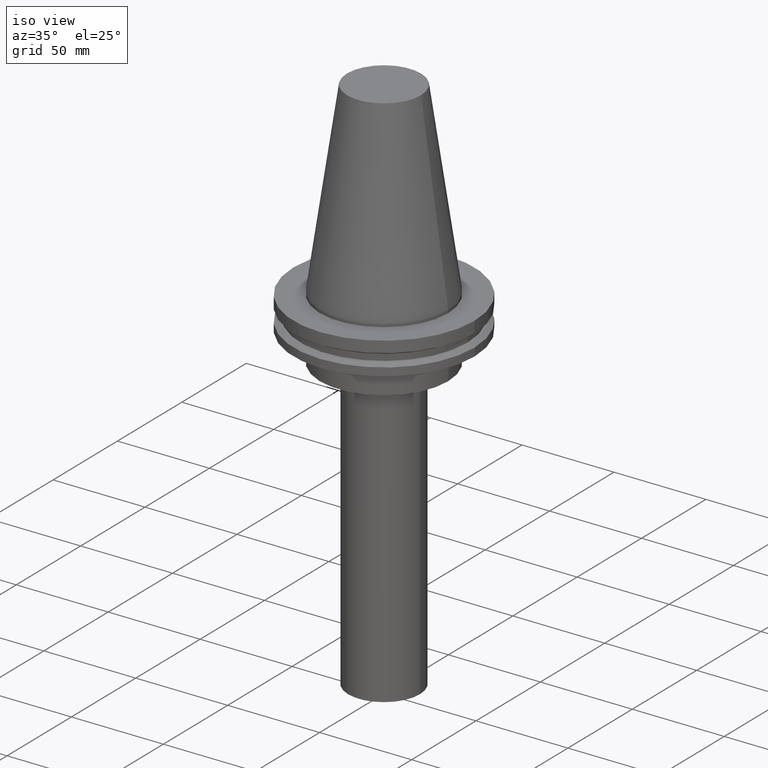
[diagram: clean part render]
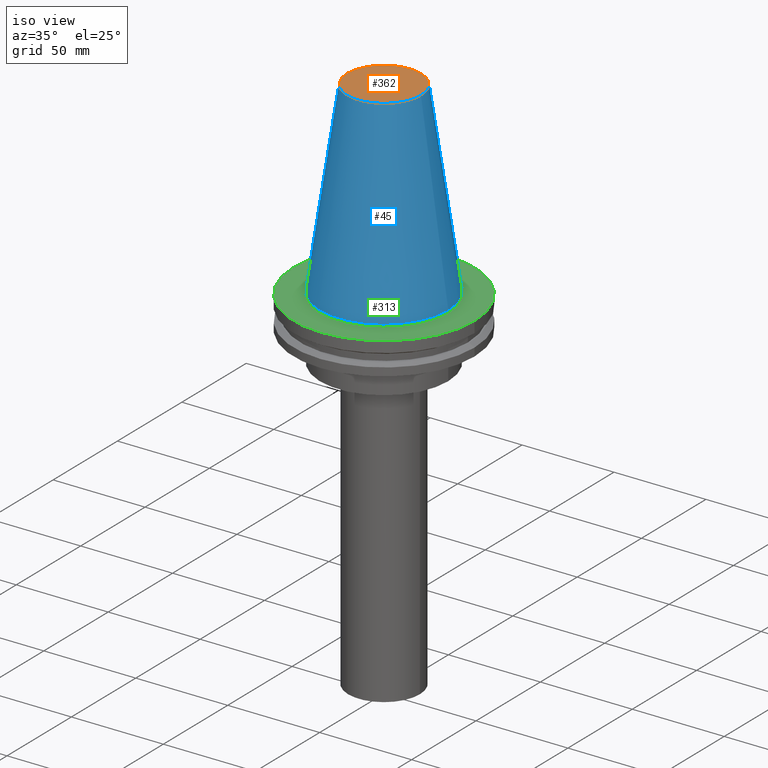
[diagram: same view with three faces highlighted in distinct colors, each labeled with its STEP entity id]
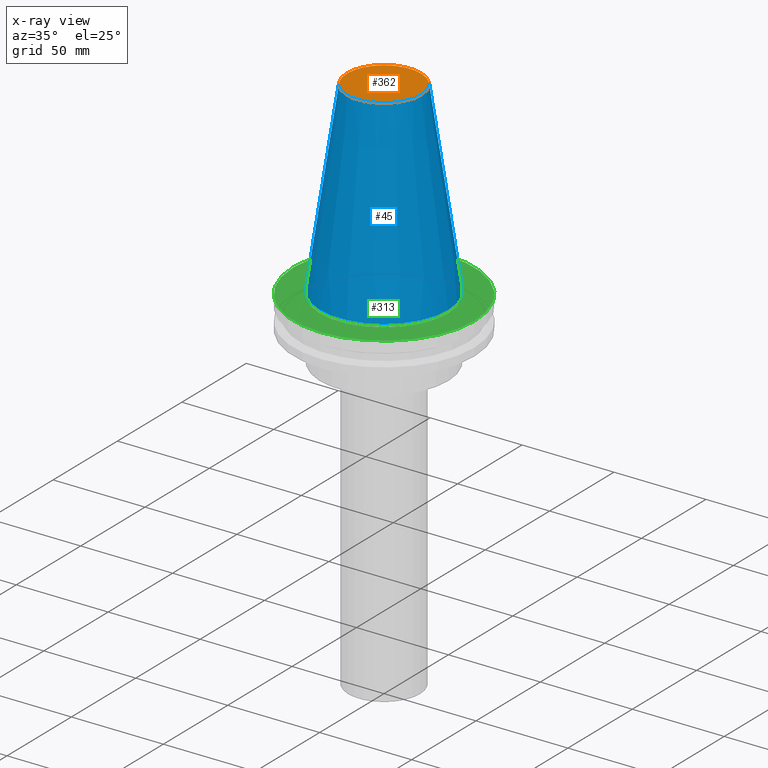
[diagram: x-ray of the same camera — body ghosted, the three highlighted faces saturated]
A machine part, iso view with three faces highlighted in distinct colors.
The next image is the same camera in x-ray (body ghosted, the three faces saturated) — at least one of them is partly hidden behind the body in this view.
Their STEP definitions:

[orange] entity #362 — the highlighted planar face has unit normal (0, 0, -1).
#17 = EDGE_CURVE ( 'NONE', #77, #77, #104, .T. ) ;
#25 = CARTESIAN_POINT ( 'NONE',  ( 20.10819343178871321, 0.000000000000000000, 101.5999999999999801 ) ) ;
#34 = AXIS2_PLACEMENT_3D ( 'NONE', #324, #132, #78 ) ;
#66 = DIRECTION ( 'NONE',  ( 1.000000000000000000, 0.000000000000000000, 0.000000000000000000 ) ) ;
#77 = VERTEX_POINT ( 'NONE', #25 ) ;
#78 = DIRECTION ( 'NONE',  ( -1.000000000000000000, 0.000000000000000000, -0.000000000000000000 ) ) ;
#79 = FACE_OUTER_BOUND ( 'NONE', #280, .T. ) ;
#92 = CARTESIAN_POINT ( 'NONE',  ( 0.000000000000000000, 0.000000000000000000, 101.5999999999999801 ) ) ;
#104 = CIRCLE ( 'NONE', #381, 20.10819343178871321 ) ;
#132 = DIRECTION ( 'NONE',  ( 0.000000000000000000, 0.000000000000000000, -1.000000000000000000 ) ) ;
#211 = DIRECTION ( 'NONE',  ( -0.000000000000000000, -0.000000000000000000, 1.000000000000000000 ) ) ;
#217 = ORIENTED_EDGE ( 'NONE', *, *, #17, .T. ) ;
#280 = EDGE_LOOP ( 'NONE', ( #217 ) ) ;
#324 = CARTESIAN_POINT ( 'NONE',  ( 0.000000000000000000, 20.10819343178871321, 101.5999999999999943 ) ) ;
#362 = ADVANCED_FACE ( 'NONE', ( #79 ), #363, .F. ) ;
#363 = PLANE ( 'NONE',  #34 ) ;
#381 = AXIS2_PLACEMENT_3D ( 'NONE', #92, #211, #66 ) ;

[blue] entity #45 — the highlighted conical surface has half-angle 8.297 deg.
#5 = VERTEX_POINT ( 'NONE', #37 ) ;
#12 = DIRECTION ( 'NONE',  ( 0.000000000000000000, 0.000000000000000000, -1.000000000000000000 ) ) ;
#17 = EDGE_CURVE ( 'NONE', #77, #77, #104, .T. ) ;
#22 = AXIS2_PLACEMENT_3D ( 'NONE', #44, #12, #96 ) ;
#25 = CARTESIAN_POINT ( 'NONE',  ( 20.10819343178871321, 0.000000000000000000, 101.5999999999999801 ) ) ;
#37 = CARTESIAN_POINT ( 'NONE',  ( 34.92499999999999005, 0.000000000000000000, 0.000000000000000000 ) ) ;
#44 = CARTESIAN_POINT ( 'NONE',  ( 0.000000000000000000, 0.000000000000000000, 0.000000000000000000 ) ) ;
#45 = ADVANCED_FACE ( 'NONE', ( #253, #122 ), #138, .T. ) ;
#63 = EDGE_LOOP ( 'NONE', ( #216 ) ) ;
#66 = DIRECTION ( 'NONE',  ( 1.000000000000000000, 0.000000000000000000, 0.000000000000000000 ) ) ;
#77 = VERTEX_POINT ( 'NONE', #25 ) ;
#92 = CARTESIAN_POINT ( 'NONE',  ( 0.000000000000000000, 0.000000000000000000, 101.5999999999999801 ) ) ;
#96 = DIRECTION ( 'NONE',  ( -1.000000000000000000, 0.000000000000000000, 0.000000000000000000 ) ) ;
#104 = CIRCLE ( 'NONE', #381, 20.10819343178871321 ) ;
#122 = FACE_OUTER_BOUND ( 'NONE', #307, .T. ) ;
#135 = DIRECTION ( 'NONE',  ( 1.000000000000000000, 0.000000000000000000, 0.000000000000000000 ) ) ;
#138 = CONICAL_SURFACE ( 'NONE', #22, 34.92499999999999005, 0.1448138465474119452 ) ;
#175 = CIRCLE ( 'NONE', #301, 34.92499999999999005 ) ;
#197 = DIRECTION ( 'NONE',  ( -0.000000000000000000, -0.000000000000000000, 1.000000000000000000 ) ) ;
#211 = DIRECTION ( 'NONE',  ( -0.000000000000000000, -0.000000000000000000, 1.000000000000000000 ) ) ;
#216 = ORIENTED_EDGE ( 'NONE', *, *, #17, .F. ) ;
#241 = ORIENTED_EDGE ( 'NONE', *, *, #351, .T. ) ;
#253 = FACE_BOUND ( 'NONE', #63, .T. ) ;
#301 = AXIS2_PLACEMENT_3D ( 'NONE', #361, #197, #135 ) ;
#307 = EDGE_LOOP ( 'NONE', ( #241 ) ) ;
#351 = EDGE_CURVE ( 'NONE', #5, #5, #175, .T. ) ;
#361 = CARTESIAN_POINT ( 'NONE',  ( 0.000000000000000000, 0.000000000000000000, 0.000000000000000000 ) ) ;
#381 = AXIS2_PLACEMENT_3D ( 'NONE', #92, #211, #66 ) ;

[green] entity #313 — the highlighted planar face has unit normal (0, 0, -1).
#6 = ORIENTED_EDGE ( 'NONE', *, *, #231, .F. ) ;
#13 = DIRECTION ( 'NONE',  ( -0.000000000000000000, -0.000000000000000000, 1.000000000000000000 ) ) ;
#21 = PLANE ( 'NONE',  #290 ) ;
#28 = AXIS2_PLACEMENT_3D ( 'NONE', #298, #109, #387 ) ;
#91 = CIRCLE ( 'NONE', #28, 49.21499999999999631 ) ;
#105 = CIRCLE ( 'NONE', #212, 34.92499999999999005 ) ;
#109 = DIRECTION ( 'NONE',  ( -0.000000000000000000, -0.000000000000000000, 1.000000000000000000 ) ) ;
#117 = VERTEX_POINT ( 'NONE', #276 ) ;
#141 = CARTESIAN_POINT ( 'NONE',  ( 0.000000000000000000, 49.21499999999999631, -1.499999999999992895 ) ) ;
#146 = ORIENTED_EDGE ( 'NONE', *, *, #320, .T. ) ;
#165 = DIRECTION ( 'NONE',  ( 0.000000000000000000, 0.000000000000000000, -1.000000000000000000 ) ) ;
#212 = AXIS2_PLACEMENT_3D ( 'NONE', #319, #13, #376 ) ;
#231 = EDGE_CURVE ( 'NONE', #273, #273, #105, .T. ) ;
#243 = CARTESIAN_POINT ( 'NONE',  ( 34.92499999999999005, 0.000000000000000000, -1.499999999999987566 ) ) ;
#272 = EDGE_LOOP ( 'NONE', ( #146 ) ) ;
#273 = VERTEX_POINT ( 'NONE', #243 ) ;
#276 = CARTESIAN_POINT ( 'NONE',  ( 49.21499999999999631, 0.000000000000000000, -1.499999999999987566 ) ) ;
#290 = AXIS2_PLACEMENT_3D ( 'NONE', #141, #165, #358 ) ;
#296 = FACE_OUTER_BOUND ( 'NONE', #272, .T. ) ;
#298 = CARTESIAN_POINT ( 'NONE',  ( 0.000000000000000000, 0.000000000000000000, -1.499999999999987566 ) ) ;
#313 = ADVANCED_FACE ( 'NONE', ( #390, #296 ), #21, .F. ) ;
#319 = CARTESIAN_POINT ( 'NONE',  ( 0.000000000000000000, 0.000000000000000000, -1.499999999999987566 ) ) ;
#320 = EDGE_CURVE ( 'NONE', #117, #117, #91, .T. ) ;
#358 = DIRECTION ( 'NONE',  ( -1.000000000000000000, 0.000000000000000000, -0.000000000000000000 ) ) ;
#371 = EDGE_LOOP ( 'NONE', ( #6 ) ) ;
#376 = DIRECTION ( 'NONE',  ( 1.000000000000000000, 0.000000000000000000, 0.000000000000000000 ) ) ;
#387 = DIRECTION ( 'NONE',  ( 1.000000000000000000, 0.000000000000000000, 0.000000000000000000 ) ) ;
#390 = FACE_BOUND ( 'NONE', #371, .T. ) ;